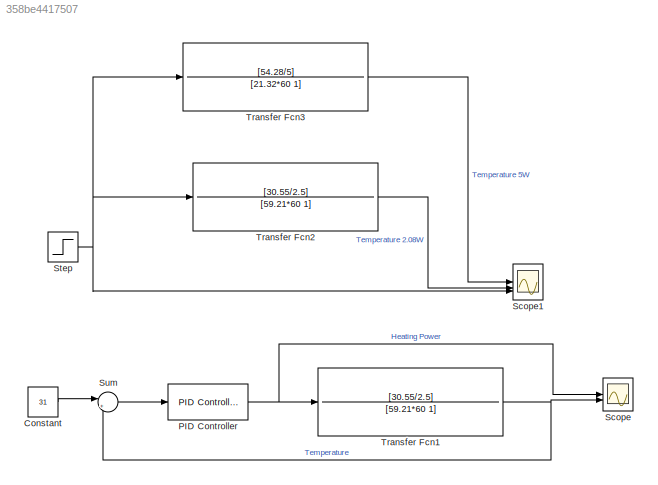
MODEL slx_358be4417507
KIND model
CONFIG AbsTol = auto
CONFIG EnableMultiTasking = off
CONFIG FixedStep = auto
CONFIG MaxStep = auto
CONFIG MinStep = auto
CONFIG RelTol = 1e-3
CONFIG SampleTimeConstraint = Unconstrained
CONFIG SolverName = VariableStepAuto
CONFIG StartTime = 0.0
CONFIG StopTime = 60*60*10
BLOCK [Constant] Constant
  SampleTime = 1
  Value = 31
BLOCK [Reference] PID Controller  REF=slpidlib/PID Controller
  LibrarySourceBlock = simulink/Continuous/PID Controller
  SourceBlock = slpidlib/PID Controller
  SourceType = PID 1dof
BLOCK [Scope] Scope
  Floating = off
  NumInputPorts = 2
  ScopeSpecificationString = Simulink.scopes.TimeScopeBlockCfg('CurrentConfiguration', extmgr.ConfigurationSet(extmgr.Configuration('Core','General UI',true),extmgr.Configuration('Core','Source UI',true),extmgr.Configuration('Sources','WiredSimulink',true,'SampleTime','1'),extmgr.Configuration('Visuals','Time Domain',true,'TimeAxisLabels','All','SerializedDisplays',{struct('MinYLimReal','-3.81832','MaxYLimReal','34.36487','YL...<+1631ch>
BLOCK [Scope] Scope1
  Floating = off
  NumInputPorts = 3
  ScopeSpecificationString = Simulink.scopes.TimeScopeBlockCfg('CurrentConfiguration', extmgr.ConfigurationSet(extmgr.Configuration('Core','General UI',true),extmgr.Configuration('Core','Source UI',true),extmgr.Configuration('Sources','WiredSimulink',true,'SampleTime','1','DataLoggingVariableName','ScopeData1'),extmgr.Configuration('Visuals','Time Domain',true,'TimeAxisLabels','All','SerializedDisplays',{struct('MinYLimReal',...<+1657ch>
BLOCK [Step] Step
  SampleTime = 0
BLOCK [Sum] Sum
  Inputs = |+-
BLOCK [TransferFcn] Transfer Fcn1
  Denominator = [59.21*60 1]
  Numerator = [30.55/2.5]
BLOCK [TransferFcn] Transfer Fcn2
  Denominator = [59.21*60 1]
  Numerator = [30.55/2.5]
BLOCK [TransferFcn] Transfer Fcn3
  Denominator = [21.32*60 1]
  Numerator = [54.28/5]
LINE Constant:1 -> Sum:1
NET PID Controller:1 -> Scope:1, Transfer Fcn1:1
NET Step:1 -> Scope1:3, Transfer Fcn2:1, Transfer Fcn3:1
LINE Sum:1 -> PID Controller:1
NET Transfer Fcn1:1 -> Scope:2, Sum:2
LINE Transfer Fcn2:1 -> Scope1:2
LINE Transfer Fcn3:1 -> Scope1:1
note: NET lines group one-source signal fan-out (src -> all destinations, sorted); 1:1 wires keep LINE
